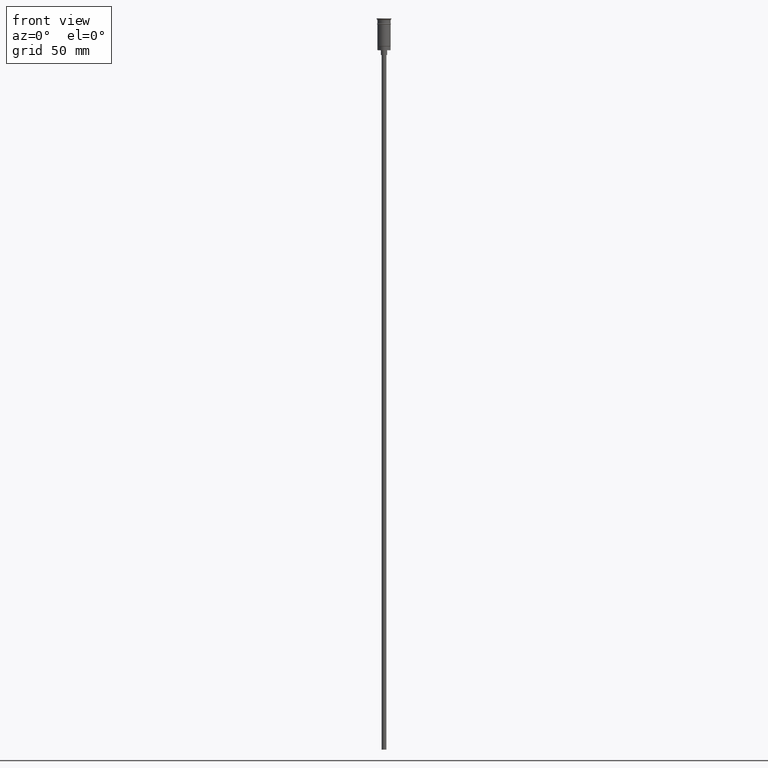
[diagram: clean part render]
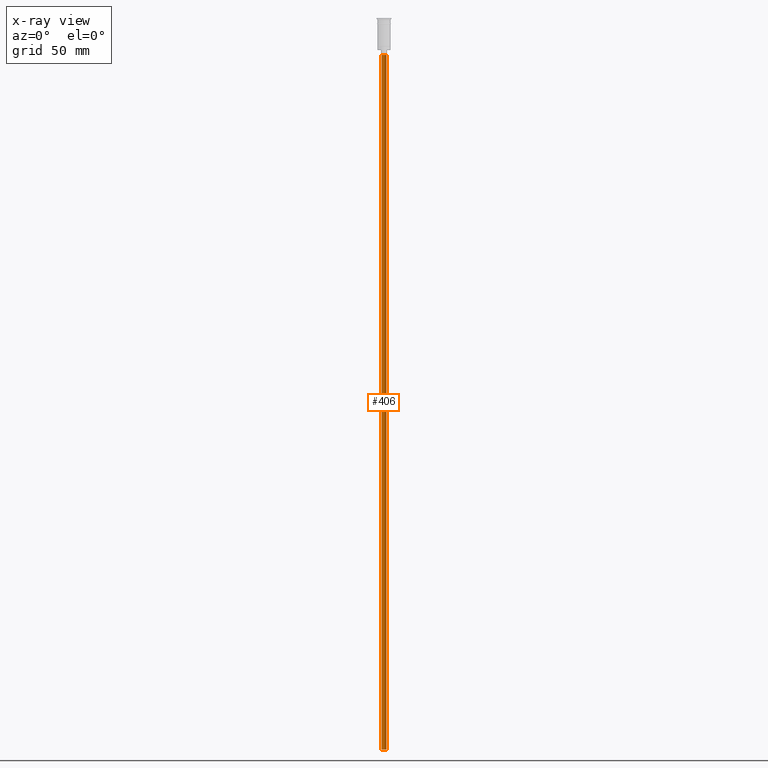
[diagram: x-ray — body ghosted, one internal face saturated and labeled with its STEP entity id]
A machine part, front view, then the same camera in x-ray: the body is ghosted and one INTERNAL B-rep face — a face not visible from any outside direction — is saturated and labeled: STEP entity #406.
In plain terms, the highlighted cylindrical surface (edge-blend (fillet) strip) has radius 1.5 mm, axis along (-0, -0, 1).
Its self-contained STEP definition (entity closure, byte-faithful):
#109 = LINE ( 'NONE', #606, #1271 ) ;
#150 = ORIENTED_EDGE ( 'NONE', *, *, #1229, .F. ) ;
#199 = AXIS2_PLACEMENT_3D ( 'NONE', #1571, #965, #1092 ) ;
#245 = LINE ( 'NONE', #1312, #1066 ) ;
#277 = CARTESIAN_POINT ( 'NONE',  ( -1.500000000000000222, 1.836970198721030181E-16, -470.5000000000000568 ) ) ;
#311 = CARTESIAN_POINT ( 'NONE',  ( 1.500000000000000222, 0.000000000000000000, -470.5000000000000568 ) ) ;
#331 = AXIS2_PLACEMENT_3D ( 'NONE', #745, #1205, #842 ) ;
#406 = ADVANCED_FACE ( 'NONE', ( #1444 ), #828, .T. ) ;
#475 = DIRECTION ( 'NONE',  ( -0.000000000000000000, -0.000000000000000000, 1.000000000000000000 ) ) ;
#534 = EDGE_CURVE ( 'NONE', #972, #1385, #109, .T. ) ;
#567 = VERTEX_POINT ( 'NONE', #1128 ) ;
#606 = CARTESIAN_POINT ( 'NONE',  ( 1.500000000000000222, 0.000000000000000000, -470.5000000000000568 ) ) ;
#648 = ORIENTED_EDGE ( 'NONE', *, *, #1336, .T. ) ;
#654 = EDGE_LOOP ( 'NONE', ( #150, #1270, #648, #1500 ) ) ;
#745 = CARTESIAN_POINT ( 'NONE',  ( 0.000000000000000000, 0.000000000000000000, -470.5000000000000568 ) ) ;
#778 = VERTEX_POINT ( 'NONE', #277 ) ;
#828 = CYLINDRICAL_SURFACE ( 'NONE', #1353, 1.500000000000000222 ) ;
#842 = DIRECTION ( 'NONE',  ( -1.000000000000000000, 0.000000000000000000, 0.000000000000000000 ) ) ;
#851 = CARTESIAN_POINT ( 'NONE',  ( 0.000000000000000000, 0.000000000000000000, -470.5000000000000568 ) ) ;
#958 = DIRECTION ( 'NONE',  ( 1.000000000000000000, 0.000000000000000000, 0.000000000000000000 ) ) ;
#965 = DIRECTION ( 'NONE',  ( 0.000000000000000000, 0.000000000000000000, -1.000000000000000000 ) ) ;
#972 = VERTEX_POINT ( 'NONE', #311 ) ;
#1012 = CIRCLE ( 'NONE', #331, 1.500000000000000222 ) ;
#1066 = VECTOR ( 'NONE', #475, 1000.000000000000000 ) ;
#1072 = DIRECTION ( 'NONE',  ( -0.000000000000000000, -0.000000000000000000, 1.000000000000000000 ) ) ;
#1092 = DIRECTION ( 'NONE',  ( -1.000000000000000000, 0.000000000000000000, 0.000000000000000000 ) ) ;
#1098 = CIRCLE ( 'NONE', #199, 1.500000000000000222 ) ;
#1113 = CARTESIAN_POINT ( 'NONE',  ( 1.500000000000000222, 0.000000000000000000, -23.49999999999999645 ) ) ;
#1128 = CARTESIAN_POINT ( 'NONE',  ( -1.500000000000000222, 1.836970198721030181E-16, -23.49999999999999645 ) ) ;
#1205 = DIRECTION ( 'NONE',  ( 0.000000000000000000, 0.000000000000000000, -1.000000000000000000 ) ) ;
#1229 = EDGE_CURVE ( 'NONE', #778, #972, #1012, .T. ) ;
#1270 = ORIENTED_EDGE ( 'NONE', *, *, #1578, .T. ) ;
#1271 = VECTOR ( 'NONE', #1593, 1000.000000000000000 ) ;
#1312 = CARTESIAN_POINT ( 'NONE',  ( -1.500000000000000222, 1.836970198721030181E-16, -470.5000000000000568 ) ) ;
#1336 = EDGE_CURVE ( 'NONE', #567, #1385, #1098, .T. ) ;
#1353 = AXIS2_PLACEMENT_3D ( 'NONE', #851, #1072, #958 ) ;
#1385 = VERTEX_POINT ( 'NONE', #1113 ) ;
#1444 = FACE_OUTER_BOUND ( 'NONE', #654, .T. ) ;
#1500 = ORIENTED_EDGE ( 'NONE', *, *, #534, .F. ) ;
#1571 = CARTESIAN_POINT ( 'NONE',  ( 0.000000000000000000, 0.000000000000000000, -23.49999999999999645 ) ) ;
#1578 = EDGE_CURVE ( 'NONE', #778, #567, #245, .T. ) ;
#1593 = DIRECTION ( 'NONE',  ( -0.000000000000000000, -0.000000000000000000, 1.000000000000000000 ) ) ;